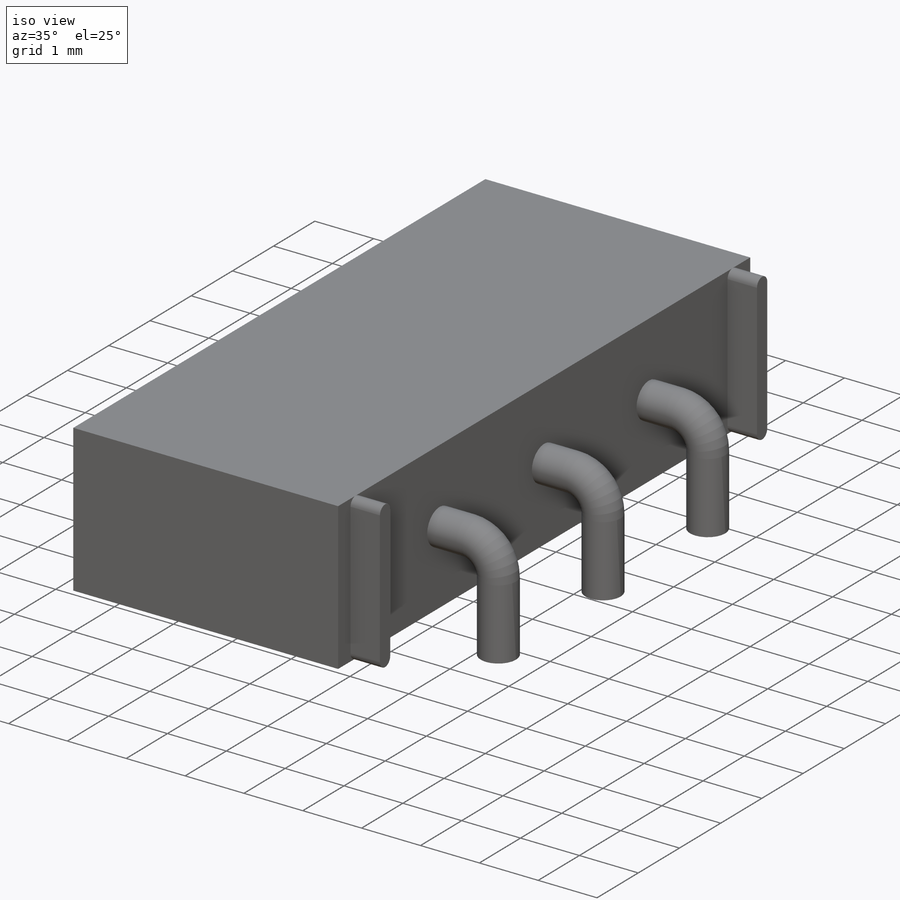
[diagram: iso view]
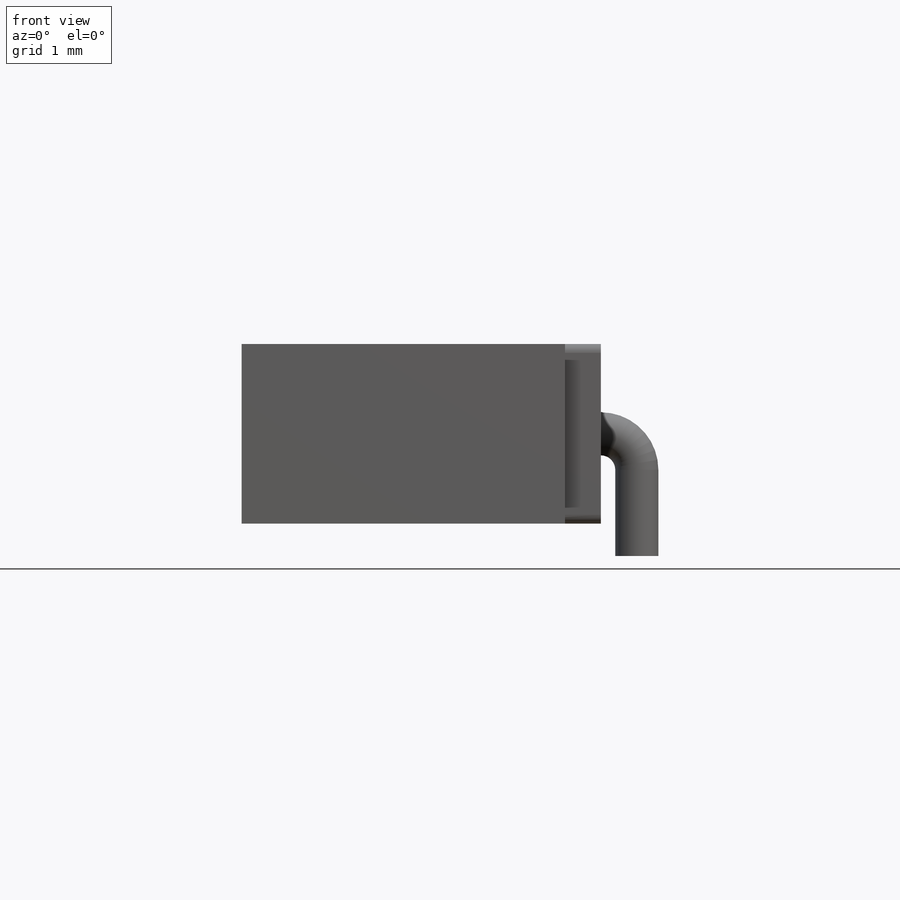
[diagram: front view]
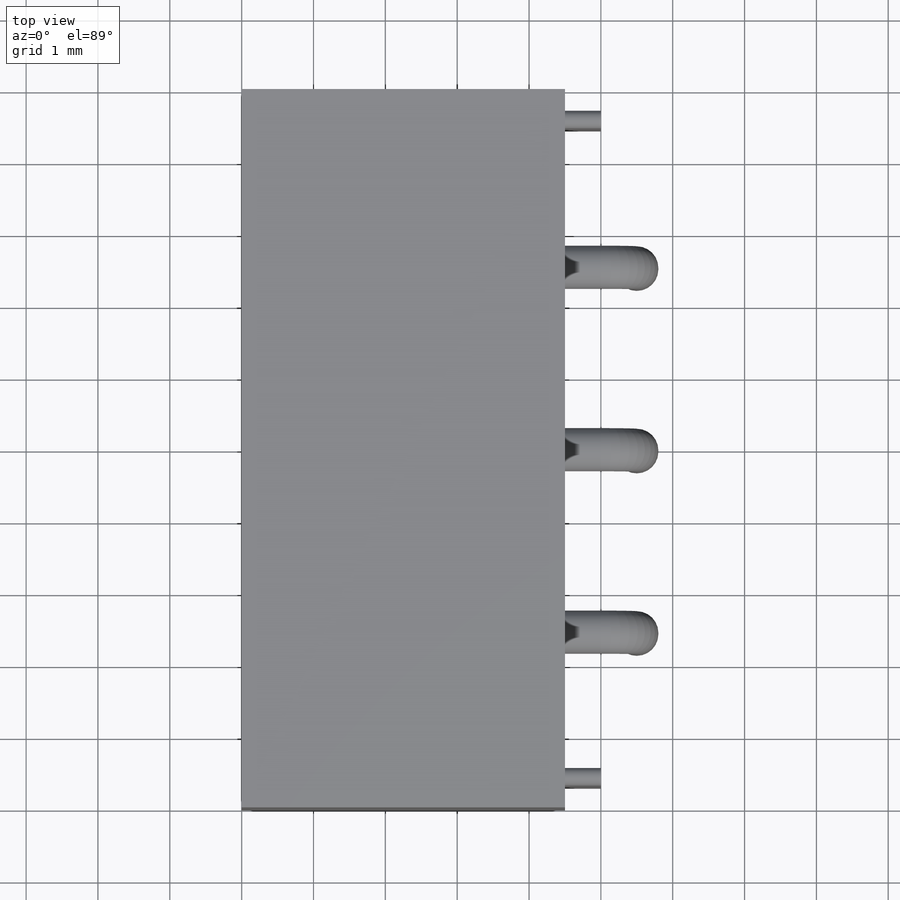
[diagram: top view]
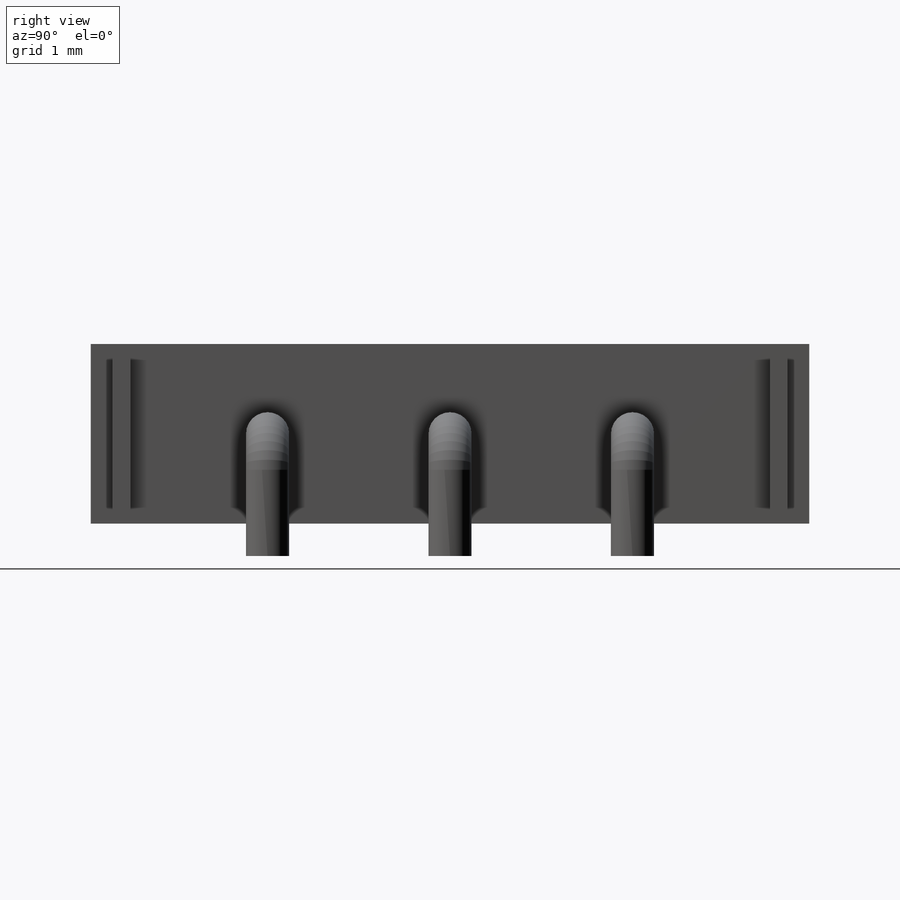
[diagram: right view]
SOLIDWORKS PART (.sldprt)
format: sldprt  version: not decoded by parser v0  size: 257,024 bytes
history: native  units: mm
features: sketch x6, extrude x2, cut_extrude x2, material x1, plane x1, sweep x1 (+13 scaffold rows collapsed)
feature tree (26):
  scaffold x13  (default folders/planes/origin — collapsed)
  material  "Material <not specified>"
  sketch  "Sketch1"  dims[D1=10.0mm D2=4.5mm]
  extrude  "Body Shape"  Depth=2.5mm
  sketch  "Sketch2"  dims[D1=1.0mm D2=0.65mm]
  cut_extrude  "Off Hole"  Depth=1mm
  sketch  "Sketch3"
  cut_extrude  "On hole"  Depth=0.1mm
  sketch  "Sketch4"  dims[D1=0.6mm D2=2.54mm D3=3.0]
  sketch  "Sketch8"  dims[c1.D1=~0.125013mm c1.D4=~0.125013mm c2.D1=29.0mm c2.D2=0.3mm c2.D3=0.25mm c3.D1=0.0mm c3.D2=0.0mm]
  plane  "Plane2"
  sketch  "Sketch9"  dims[c1.D1=0.5mm c1.D2=1.2mm c1.D3=1.7mm c2.D1=1.2mm c2.D3=1.7mm c3.D1=1.0mm]
  extrude  "bottom flaps"  Depth=0.5mm
  sweep  "pins"
decode coverage: 9 of 11 modeling features carry decoded parameters
note: ~ marks probable driven/reference dimensions
note: suppression state not decoded; provenance and decode notes live in map.json
